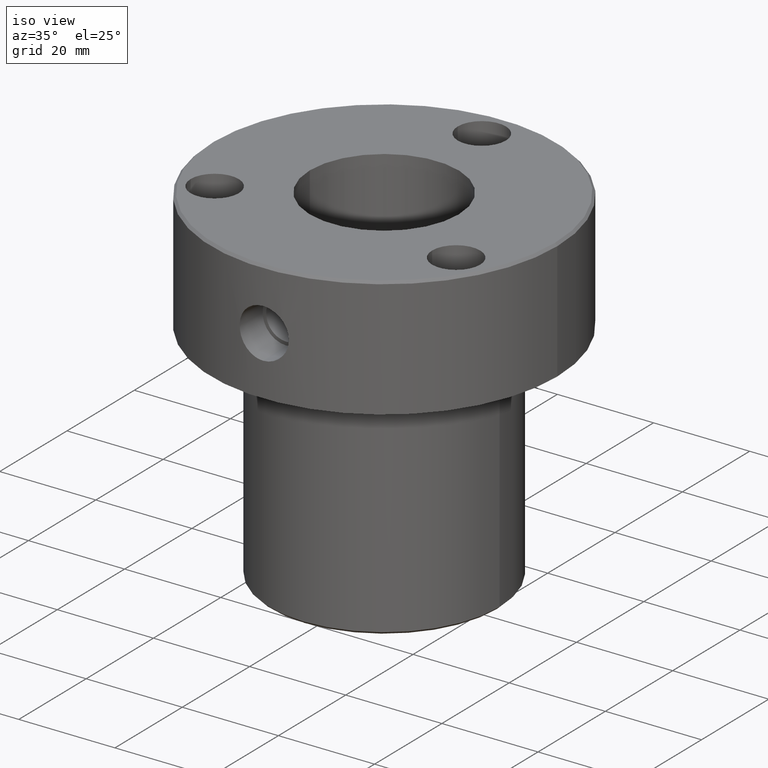
[diagram: clean part render]
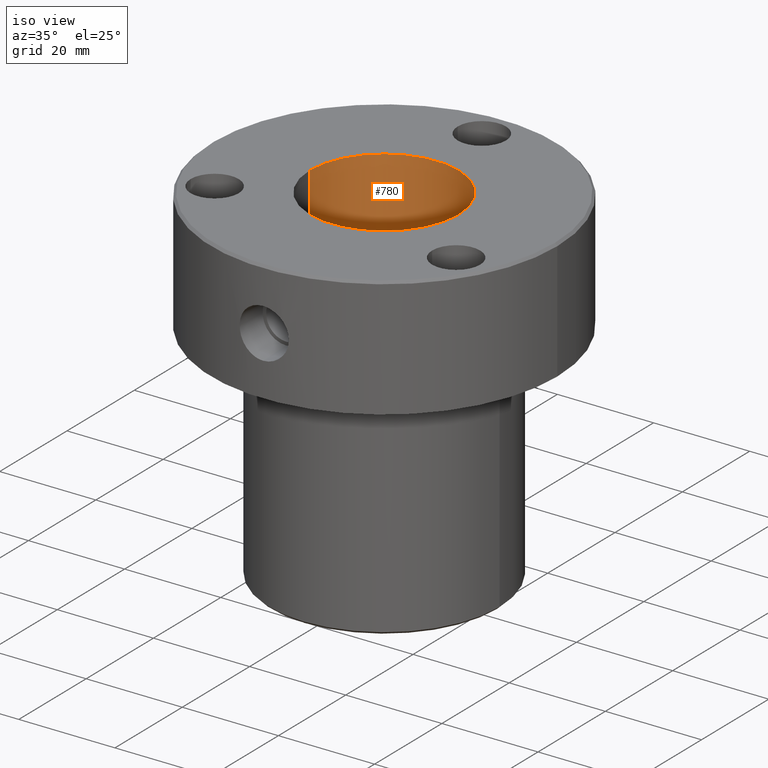
[diagram: same view with one face highlighted and labeled with its STEP entity id]
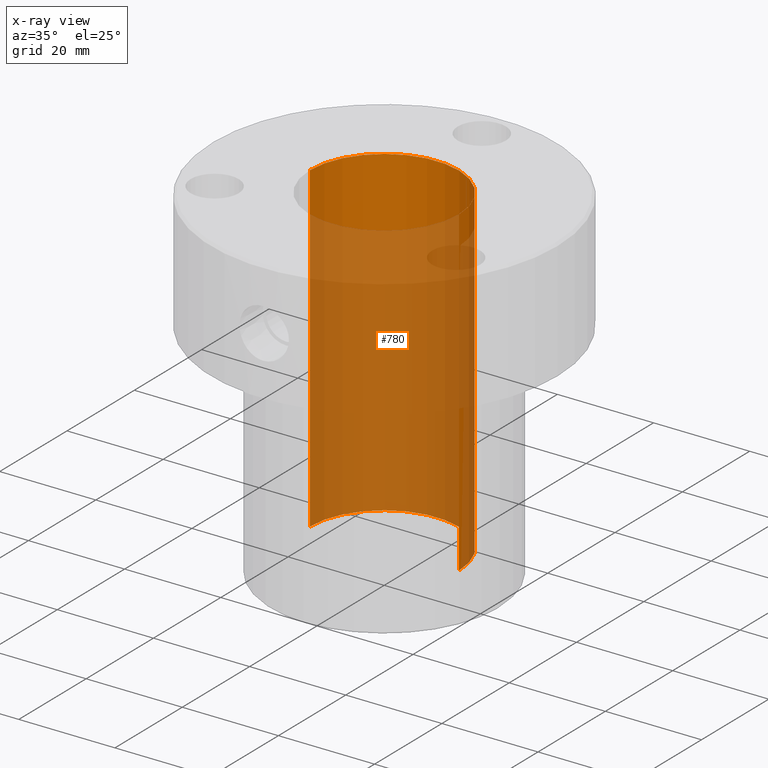
[diagram: x-ray of the same camera — body ghosted, the highlighted face saturated]
A machine part, iso view. The second image highlights one B-rep face of the part: STEP entity #780.
The next image is the same camera in x-ray: the body ghosted, the highlighted face saturated — about 81% of this face is hidden behind the body in this view.
In plain terms, the highlighted cylindrical surface (partial cylindrical patch) has radius 15.5 mm, axis along (-0, -0, -1).
Its self-contained STEP definition (entity closure, byte-faithful):
#69 = DIRECTION ( 'NONE',  ( -1.000000000000000000, 0.000000000000000000, 0.000000000000000000 ) ) ;
#72 = ORIENTED_EDGE ( 'NONE', *, *, #317, .F. ) ;
#73 = DIRECTION ( 'NONE',  ( -1.000000000000000000, 0.000000000000000000, 0.000000000000000000 ) ) ;
#127 = VECTOR ( 'NONE', #1212, 1000.000000000000000 ) ;
#152 = ORIENTED_EDGE ( 'NONE', *, *, #730, .T. ) ;
#163 = EDGE_CURVE ( 'NONE', #936, #987, #169, .T. ) ;
#165 = CARTESIAN_POINT ( 'NONE',  ( 0.000000000000000000, 0.000000000000000000, 0.000000000000000000 ) ) ;
#169 = LINE ( 'NONE', #935, #1226 ) ;
#215 = CARTESIAN_POINT ( 'NONE',  ( -15.50000000000000000, 0.000000000000000000, -66.99999999999998579 ) ) ;
#252 = EDGE_CURVE ( 'NONE', #436, #987, #1245, .T. ) ;
#253 = DIRECTION ( 'NONE',  ( -0.000000000000000000, -0.000000000000000000, -1.000000000000000000 ) ) ;
#279 = DIRECTION ( 'NONE',  ( 0.000000000000000000, 0.000000000000000000, -1.000000000000000000 ) ) ;
#317 = EDGE_CURVE ( 'NONE', #320, #936, #1106, .T. ) ;
#320 = VERTEX_POINT ( 'NONE', #837 ) ;
#436 = VERTEX_POINT ( 'NONE', #215 ) ;
#442 = AXIS2_PLACEMENT_3D ( 'NONE', #1045, #951, #69 ) ;
#457 = AXIS2_PLACEMENT_3D ( 'NONE', #165, #756, #654 ) ;
#565 = CYLINDRICAL_SURFACE ( 'NONE', #442, 15.50000000000000000 ) ;
#618 = CARTESIAN_POINT ( 'NONE',  ( -15.50000000000000000, 0.000000000000000000, 0.000000000000000000 ) ) ;
#631 = LINE ( 'NONE', #618, #127 ) ;
#634 = ORIENTED_EDGE ( 'NONE', *, *, #252, .T. ) ;
#654 = DIRECTION ( 'NONE',  ( -1.000000000000000000, 0.000000000000000000, 0.000000000000000000 ) ) ;
#730 = EDGE_CURVE ( 'NONE', #320, #436, #631, .T. ) ;
#756 = DIRECTION ( 'NONE',  ( 0.000000000000000000, 0.000000000000000000, -1.000000000000000000 ) ) ;
#780 = ADVANCED_FACE ( 'NONE', ( #862 ), #565, .F. ) ;
#797 = AXIS2_PLACEMENT_3D ( 'NONE', #965, #279, #73 ) ;
#811 = CARTESIAN_POINT ( 'NONE',  ( 15.50000000000000000, 1.898202538678397557E-15, 0.000000000000000000 ) ) ;
#837 = CARTESIAN_POINT ( 'NONE',  ( -15.50000000000000000, 0.000000000000000000, 0.000000000000000000 ) ) ;
#862 = FACE_OUTER_BOUND ( 'NONE', #1209, .T. ) ;
#935 = CARTESIAN_POINT ( 'NONE',  ( 15.50000000000000000, 1.898202538678397557E-15, 0.000000000000000000 ) ) ;
#936 = VERTEX_POINT ( 'NONE', #811 ) ;
#951 = DIRECTION ( 'NONE',  ( -0.000000000000000000, -0.000000000000000000, -1.000000000000000000 ) ) ;
#965 = CARTESIAN_POINT ( 'NONE',  ( 0.000000000000000000, 0.000000000000000000, -66.99999999999998579 ) ) ;
#987 = VERTEX_POINT ( 'NONE', #1194 ) ;
#1033 = ORIENTED_EDGE ( 'NONE', *, *, #163, .F. ) ;
#1045 = CARTESIAN_POINT ( 'NONE',  ( 0.000000000000000000, 0.000000000000000000, 0.000000000000000000 ) ) ;
#1106 = CIRCLE ( 'NONE', #457, 15.50000000000000000 ) ;
#1194 = CARTESIAN_POINT ( 'NONE',  ( 15.50000000000000000, 1.898202538678397557E-15, -66.99999999999998579 ) ) ;
#1209 = EDGE_LOOP ( 'NONE', ( #1033, #72, #152, #634 ) ) ;
#1212 = DIRECTION ( 'NONE',  ( -0.000000000000000000, -0.000000000000000000, -1.000000000000000000 ) ) ;
#1226 = VECTOR ( 'NONE', #253, 1000.000000000000000 ) ;
#1245 = CIRCLE ( 'NONE', #797, 15.50000000000000000 ) ;